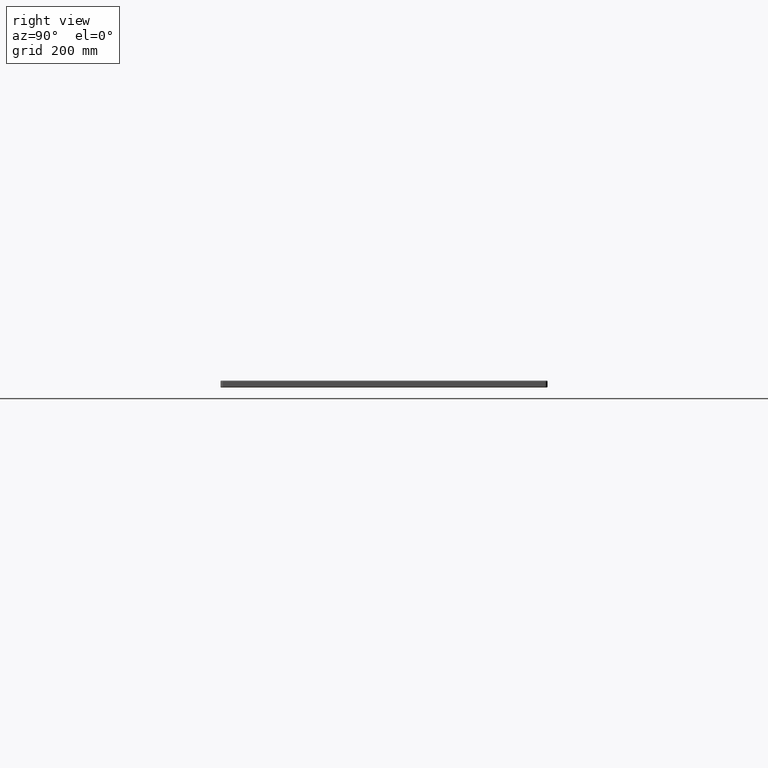
[diagram: clean part render]
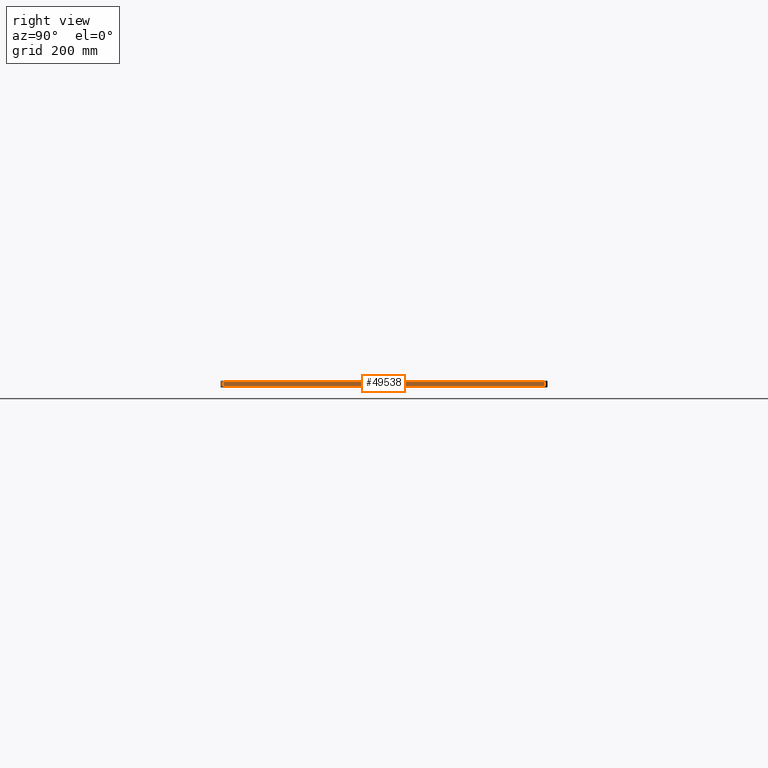
[diagram: same view with one face highlighted and labeled with its STEP entity id]
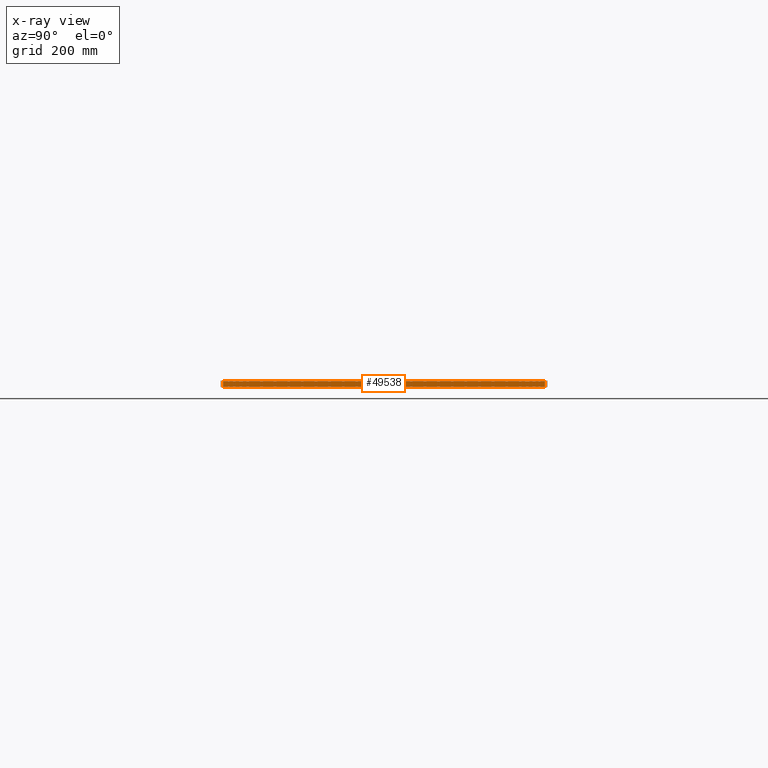
[diagram: x-ray of the same camera — body ghosted, the highlighted face saturated]
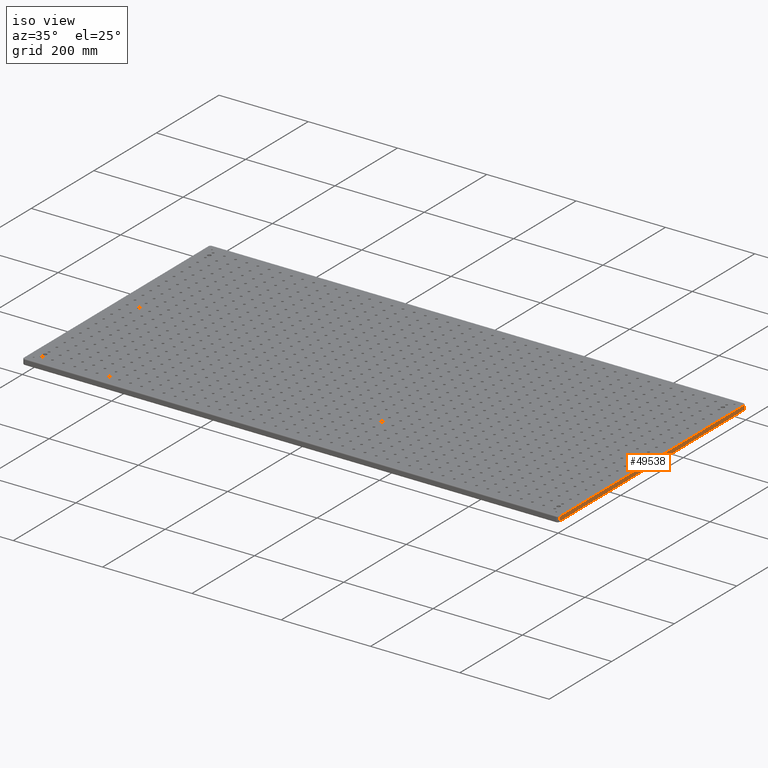
[diagram: same view with one face highlighted and labeled with its STEP entity id]
A machine part, right view. The second image highlights one B-rep face of the part: STEP entity #49538.
The next image is the same camera in x-ray: the body ghosted, the highlighted face saturated — about 0% of this face is hidden behind the body in this view.
A second angle (iso view) of the same face is appended — the face is thin or edge-on in the first view.
In plain terms, the highlighted planar face has unit normal (1, 0, 0).
Its self-contained STEP definition (entity closure, byte-faithful):
#1044 = VECTOR ( 'NONE', #72843, 1000.000000000000000 ) ;
#1076 = ORIENTED_EDGE ( 'NONE', *, *, #41663, .T. ) ;
#3425 = CARTESIAN_POINT ( 'NONE',  ( 1200.000000000000000, 4.999999999999999100, -11.00000000000000000 ) ) ;
#8459 = PLANE ( 'NONE',  #55283 ) ;
#8688 = VERTEX_POINT ( 'NONE', #37445 ) ;
#11208 = VECTOR ( 'NONE', #81649, 1000.000000000000000 ) ;
#11434 = CARTESIAN_POINT ( 'NONE',  ( 1200.000000000000000, 594.9999999999998900, -13.00000000000000000 ) ) ;
#16233 = VERTEX_POINT ( 'NONE', #49054 ) ;
#17570 = VECTOR ( 'NONE', #30735, 1000.000000000000000 ) ;
#19574 = EDGE_CURVE ( 'NONE', #27620, #31404, #44729, .T. ) ;
#23871 = LINE ( 'NONE', #78253, #58322 ) ;
#27620 = VERTEX_POINT ( 'NONE', #3425 ) ;
#30312 = EDGE_CURVE ( 'NONE', #31404, #16233, #80547, .T. ) ;
#30735 = DIRECTION ( 'NONE',  ( 0.0000000000000000000, 0.0000000000000000000, 1.000000000000000000 ) ) ;
#30785 = CARTESIAN_POINT ( 'NONE',  ( 1200.000000000000000, 594.9999999999998900, -11.00000000000000000 ) ) ;
#30890 = ORIENTED_EDGE ( 'NONE', *, *, #19574, .T. ) ;
#31404 = VERTEX_POINT ( 'NONE', #30785 ) ;
#33570 = DIRECTION ( 'NONE',  ( 0.0000000000000000000, 0.0000000000000000000, -1.000000000000000000 ) ) ;
#37445 = CARTESIAN_POINT ( 'NONE',  ( 1200.000000000000000, 4.999999999999999100, -2.000000000000000000 ) ) ;
#39047 = CARTESIAN_POINT ( 'NONE',  ( 1200.000000000000000, 0.0000000000000000000, -13.00000000000000000 ) ) ;
#41663 = EDGE_CURVE ( 'NONE', #16233, #8688, #55214, .T. ) ;
#43182 = CARTESIAN_POINT ( 'NONE',  ( 1200.000000000000000, 0.0000000000000000000, -11.00000000000000000 ) ) ;
#44729 = LINE ( 'NONE', #43182, #11208 ) ;
#49054 = CARTESIAN_POINT ( 'NONE',  ( 1200.000000000000000, 594.9999999999998900, -2.000000000000000000 ) ) ;
#49538 = ADVANCED_FACE ( 'NONE', ( #57096 ), #8459, .T. ) ;
#49944 = ORIENTED_EDGE ( 'NONE', *, *, #30312, .T. ) ;
#54333 = ORIENTED_EDGE ( 'NONE', *, *, #68424, .T. ) ;
#55214 = LINE ( 'NONE', #78896, #1044 ) ;
#55283 = AXIS2_PLACEMENT_3D ( 'NONE', #39047, #77251, #33570 ) ;
#57096 = FACE_OUTER_BOUND ( 'NONE', #80666, .T. ) ;
#58322 = VECTOR ( 'NONE', #78821, 1000.000000000000000 ) ;
#68424 = EDGE_CURVE ( 'NONE', #8688, #27620, #23871, .T. ) ;
#72843 = DIRECTION ( 'NONE',  ( -0.0000000000000000000, -1.000000000000000000, 0.0000000000000000000 ) ) ;
#77251 = DIRECTION ( 'NONE',  ( 1.000000000000000000, 0.0000000000000000000, 0.0000000000000000000 ) ) ;
#78253 = CARTESIAN_POINT ( 'NONE',  ( 1200.000000000000000, 4.999999999999999100, -13.00000000000000000 ) ) ;
#78821 = DIRECTION ( 'NONE',  ( 0.0000000000000000000, -0.0000000000000000000, -1.000000000000000000 ) ) ;
#78896 = CARTESIAN_POINT ( 'NONE',  ( 1200.000000000000000, 5.000000000000004400, -2.000000000000000000 ) ) ;
#80547 = LINE ( 'NONE', #11434, #17570 ) ;
#80666 = EDGE_LOOP ( 'NONE', ( #49944, #1076, #54333, #30890 ) ) ;
#81649 = DIRECTION ( 'NONE',  ( -0.0000000000000000000, 1.000000000000000000, 0.0000000000000000000 ) ) ;